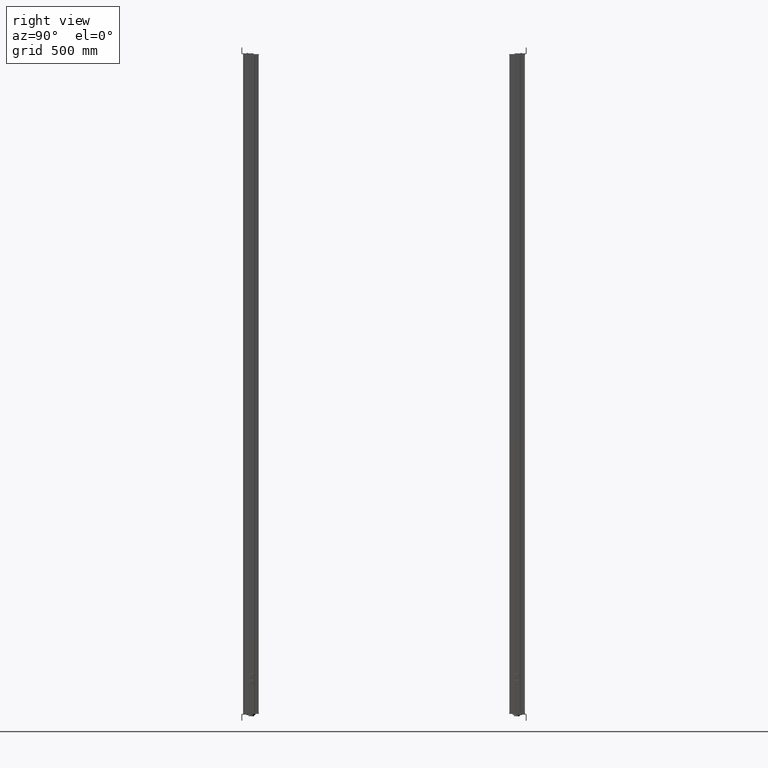
[diagram: clean part render]
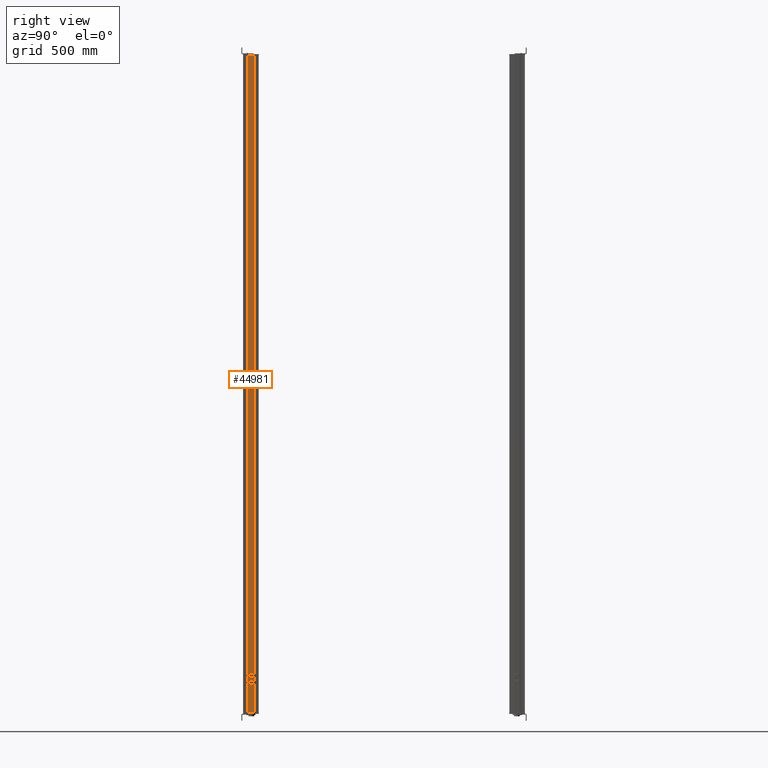
[diagram: same view with one face highlighted and labeled with its STEP entity id]
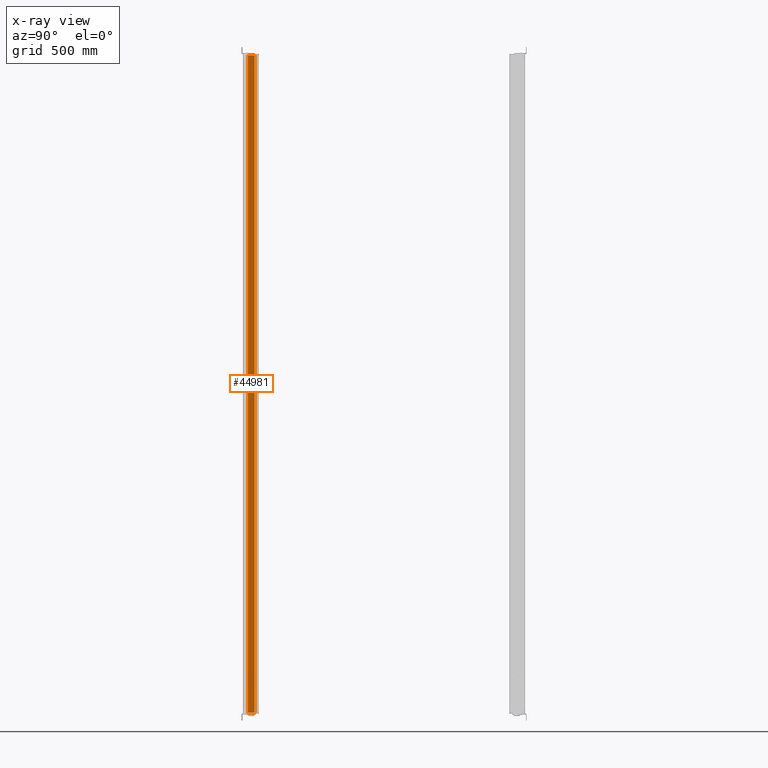
[diagram: x-ray of the same camera — body ghosted, the highlighted face saturated]
A machine part, right view. The second image highlights one B-rep face of the part: STEP entity #44981.
The next image is the same camera in x-ray: the body ghosted, the highlighted face saturated — about 0% of this face is hidden behind the body in this view.
In plain terms, the highlighted planar face has unit normal (1, 0, 0).
Its self-contained STEP definition (entity closure, byte-faithful):
#44242=CARTESIAN_POINT('Axis2P3D Location',(666.195883662,171.710394004,0.)) ;
#44934=CARTESIAN_POINT('Vertex',(666.195883661,138.767790275,0.)) ;
#44937=CARTESIAN_POINT('Line Origine',(666.195883661,138.767790275,1311.)) ;
#44941=CARTESIAN_POINT('Vertex',(666.195883661,138.767790275,2622.)) ;
#44956=CARTESIAN_POINT('Line Origine',(666.195883662,152.38909214,0.)) ;
#44960=CARTESIAN_POINT('Vertex',(666.195883662,166.010394005,0.)) ;
#44963=CARTESIAN_POINT('Line Origine',(666.195883662,166.010394005,1311.)) ;
#44967=CARTESIAN_POINT('Vertex',(666.195883662,166.010394005,2622.)) ;
#44970=CARTESIAN_POINT('Line Origine',(666.195883662,152.38909214,2622.)) ;
#44243=DIRECTION('Axis2P3D Direction',(1.,0.,0.)) ;
#44244=DIRECTION('Axis2P3D XDirection',(0.,1.,0.)) ;
#44938=DIRECTION('Vector Direction',(0.,0.,1.)) ;
#44957=DIRECTION('Vector Direction',(0.,1.,0.)) ;
#44964=DIRECTION('Vector Direction',(0.,0.,1.)) ;
#44971=DIRECTION('Vector Direction',(0.,1.,0.)) ;
#44245=AXIS2_PLACEMENT_3D('Plane Axis2P3D',#44242,#44243,#44244) ;
#44976=ORIENTED_EDGE('',*,*,#44943,.F.) ;
#44977=ORIENTED_EDGE('',*,*,#44962,.T.) ;
#44978=ORIENTED_EDGE('',*,*,#44969,.T.) ;
#44979=ORIENTED_EDGE('',*,*,#44974,.F.) ;
#44939=VECTOR('Line Direction',#44938,1.) ;
#44958=VECTOR('Line Direction',#44957,1.) ;
#44965=VECTOR('Line Direction',#44964,1.) ;
#44972=VECTOR('Line Direction',#44971,1.) ;
#44981=ADVANCED_FACE('Body.2',(#44980),#44246,.T.) ;
#44943=EDGE_CURVE('',#44935,#44942,#44940,.T.) ;
#44962=EDGE_CURVE('',#44935,#44961,#44959,.T.) ;
#44969=EDGE_CURVE('',#44961,#44968,#44966,.T.) ;
#44974=EDGE_CURVE('',#44942,#44968,#44973,.T.) ;
#44975=EDGE_LOOP('',(#44976,#44977,#44978,#44979)) ;
#44980=FACE_OUTER_BOUND('',#44975,.T.) ;
#44940=LINE('Line',#44937,#44939) ;
#44959=LINE('Line',#44956,#44958) ;
#44966=LINE('Line',#44963,#44965) ;
#44973=LINE('Line',#44970,#44972) ;
#44246=PLANE('Plane',#44245) ;
#44935=VERTEX_POINT('',#44934) ;
#44942=VERTEX_POINT('',#44941) ;
#44961=VERTEX_POINT('',#44960) ;
#44968=VERTEX_POINT('',#44967) ;